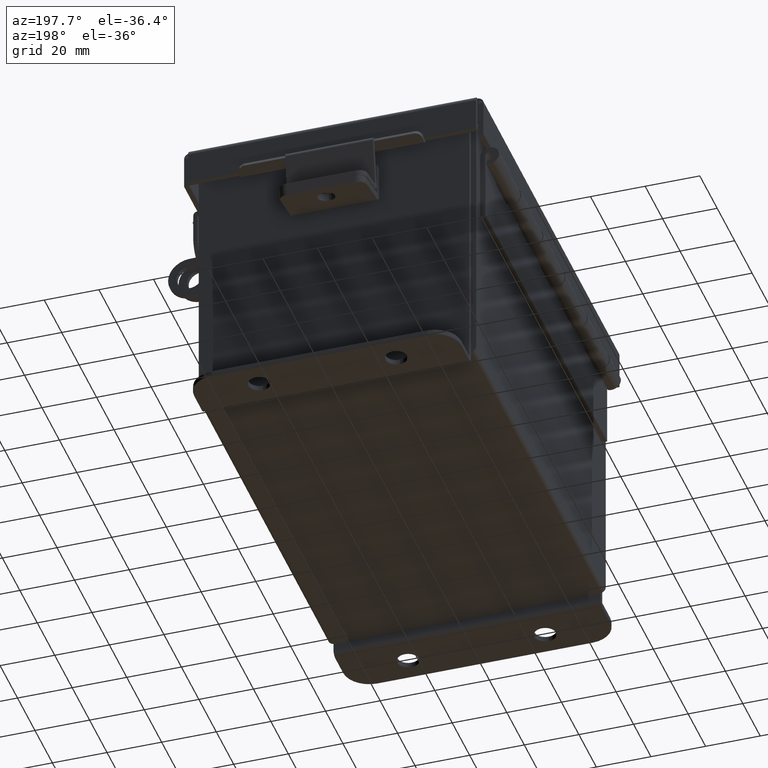
[diagram: clean part render]
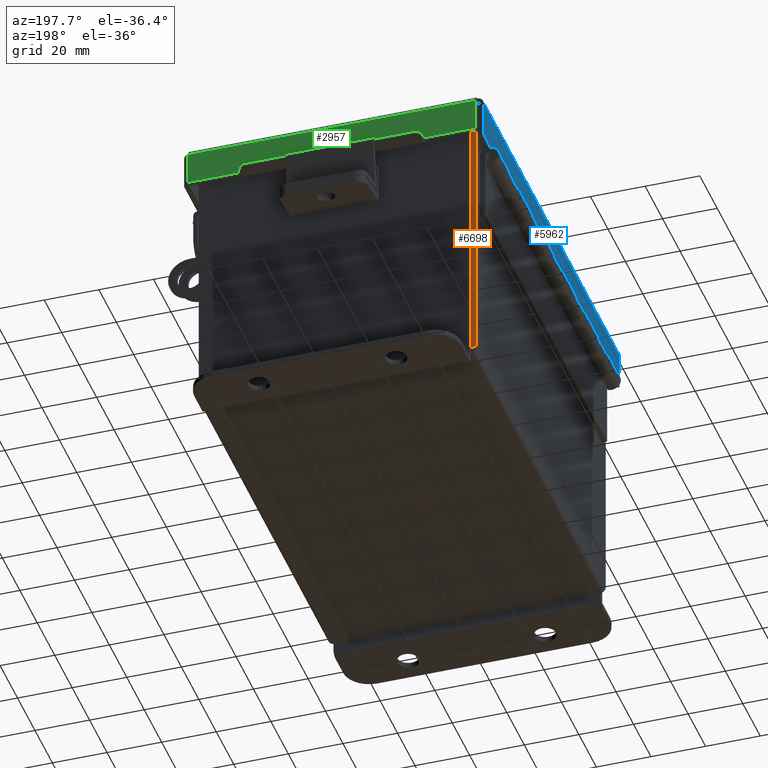
[diagram: same view with three faces highlighted in distinct colors, each labeled with its STEP entity id]
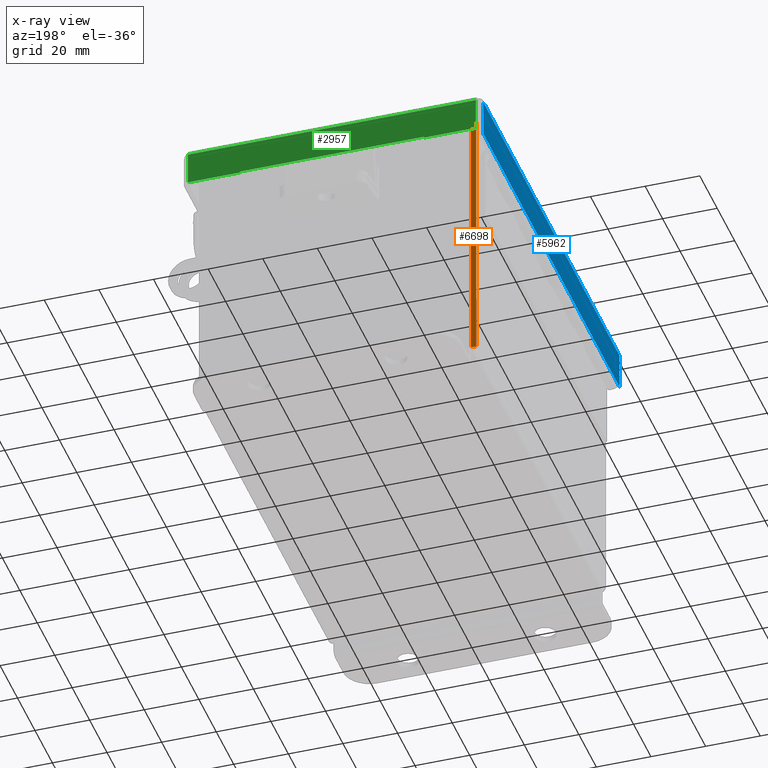
[diagram: x-ray of the same camera — body ghosted, the three highlighted faces saturated]
A machine part, auxiliary view with three faces highlighted in distinct colors.
The next image is the same camera in x-ray (body ghosted, the three faces saturated) — at least one of them is partly hidden behind the body in this view.
Their STEP definitions:

[orange] entity #6698 — the highlighted planar face has unit normal (0, -1, 0).
#428 = ORIENTED_EDGE ( 'NONE', *, *, #6834, .F. ) ;
#581 = PLANE ( 'NONE',  #9693 ) ;
#1489 = VERTEX_POINT ( 'NONE', #9388 ) ;
#1975 = DIRECTION ( 'NONE',  ( 3.476355676765930200E-015, 0.0000000000000000000, -1.000000000000000000 ) ) ;
#2546 = FACE_OUTER_BOUND ( 'NONE', #2794, .T. ) ;
#2549 = VECTOR ( 'NONE', #12480, 39.37007874015748100 ) ;
#2794 = EDGE_LOOP ( 'NONE', ( #11082, #13341, #6570, #428 ) ) ;
#2807 = CARTESIAN_POINT ( 'NONE',  ( -2.000000000000000400, 2.925299999999999600, -2.646477743862255200E-016 ) ) ;
#2919 = VERTEX_POINT ( 'NONE', #9734 ) ;
#3502 = CARTESIAN_POINT ( 'NONE',  ( -1.925300000000000700, 2.925299999999999600, 0.0000000000000000000 ) ) ;
#3817 = EDGE_CURVE ( 'NONE', #10933, #12773, #5489, .T. ) ;
#4097 = VECTOR ( 'NONE', #1975, 39.37007874015748100 ) ;
#4651 = VECTOR ( 'NONE', #12942, 39.37007874015748100 ) ;
#4829 = CARTESIAN_POINT ( 'NONE',  ( -2.000000000000000400, 2.925299999999999600, 0.01299999999999956900 ) ) ;
#5002 = LINE ( 'NONE', #11860, #4651 ) ;
#5018 = DIRECTION ( 'NONE',  ( 0.0000000000000000000, -1.000000000000000000, 0.0000000000000000000 ) ) ;
#5489 = LINE ( 'NONE', #3502, #8418 ) ;
#5690 = DIRECTION ( 'NONE',  ( 3.476355676765930200E-015, -0.0000000000000000000, -1.000000000000000000 ) ) ;
#6509 = CARTESIAN_POINT ( 'NONE',  ( -1.925300000000014700, 2.925299999999999600, 3.837599999999999700 ) ) ;
#6570 = ORIENTED_EDGE ( 'NONE', *, *, #12783, .T. ) ;
#6698 = ADVANCED_FACE ( 'NONE', ( #2546 ), #581, .F. ) ;
#6834 = EDGE_CURVE ( 'NONE', #2919, #1489, #12138, .T. ) ;
#8418 = VECTOR ( 'NONE', #5690, 39.37007874015748100 ) ;
#8549 = CARTESIAN_POINT ( 'NONE',  ( -2.000000000000000400, 2.925299999999999600, -7.213786108269695100E-015 ) ) ;
#9036 = EDGE_CURVE ( 'NONE', #10933, #2919, #5002, .T. ) ;
#9388 = CARTESIAN_POINT ( 'NONE',  ( -2.000000000000000400, 2.925299999999999600, 0.01299999999999946700 ) ) ;
#9693 = AXIS2_PLACEMENT_3D ( 'NONE', #2807, #5018, #12655 ) ;
#9734 = CARTESIAN_POINT ( 'NONE',  ( -2.000000000000013800, 2.925299999999999600, 3.837599999999999700 ) ) ;
#10234 = CARTESIAN_POINT ( 'NONE',  ( -1.925300000000000700, 2.925299999999999600, 0.01299999999999974100 ) ) ;
#10933 = VERTEX_POINT ( 'NONE', #6509 ) ;
#11082 = ORIENTED_EDGE ( 'NONE', *, *, #9036, .F. ) ;
#11289 = LINE ( 'NONE', #4829, #2549 ) ;
#11860 = CARTESIAN_POINT ( 'NONE',  ( -1.925300000000014700, 2.925299999999999600, 3.837599999999999700 ) ) ;
#12138 = LINE ( 'NONE', #8549, #4097 ) ;
#12480 = DIRECTION ( 'NONE',  ( -1.000000000000000000, -0.0000000000000000000, -3.491481338843133000E-015 ) ) ;
#12655 = DIRECTION ( 'NONE',  ( 0.0000000000000000000, -0.0000000000000000000, -1.000000000000000000 ) ) ;
#12773 = VERTEX_POINT ( 'NONE', #10234 ) ;
#12783 = EDGE_CURVE ( 'NONE', #12773, #1489, #11289, .T. ) ;
#12942 = DIRECTION ( 'NONE',  ( -1.000000000000000000, 0.0000000000000000000, 0.0000000000000000000 ) ) ;
#13341 = ORIENTED_EDGE ( 'NONE', *, *, #3817, .T. ) ;

[blue] entity #5962 — the highlighted planar face has unit normal (1, -0, 0).
#470 = CARTESIAN_POINT ( 'NONE',  ( 2.156249999999999600, 3.074478932188135200, -7.649174382259936200E-015 ) ) ;
#640 = ORIENTED_EDGE ( 'NONE', *, *, #4717, .T. ) ;
#722 = DIRECTION ( 'NONE',  ( -2.258600338820354400E-033, -1.000000000000000000, 0.0000000000000000000 ) ) ;
#824 = DIRECTION ( 'NONE',  ( 1.524975807186273400E-031, -1.000000000000000000, 4.327679989963191500E-017 ) ) ;
#1034 = FACE_OUTER_BOUND ( 'NONE', #1577, .T. ) ;
#1221 = ORIENTED_EDGE ( 'NONE', *, *, #9010, .F. ) ;
#1427 = ORIENTED_EDGE ( 'NONE', *, *, #5407, .F. ) ;
#1577 = EDGE_LOOP ( 'NONE', ( #1221, #640, #3016, #1427 ) ) ;
#1655 = CARTESIAN_POINT ( 'NONE',  ( 2.156249999999999600, -6.402768735150616900E-018, -7.649174382259936200E-015 ) ) ;
#1958 = AXIS2_PLACEMENT_3D ( 'NONE', #1655, #4981, #12620 ) ;
#2357 = VERTEX_POINT ( 'NONE', #9839 ) ;
#3016 = ORIENTED_EDGE ( 'NONE', *, *, #13705, .T. ) ;
#3854 = DIRECTION ( 'NONE',  ( 3.475001990850414000E-015, -0.0000000000000000000, 1.000000000000000000 ) ) ;
#3908 = LINE ( 'NONE', #13847, #12292 ) ;
#4076 = CARTESIAN_POINT ( 'NONE',  ( 2.156250000000001800, -3.074478932188135600, 0.5503000000000042300 ) ) ;
#4322 = LINE ( 'NONE', #11493, #6890 ) ;
#4717 = EDGE_CURVE ( 'NONE', #5891, #2357, #9667, .T. ) ;
#4981 = DIRECTION ( 'NONE',  ( -1.000000000000000000, -1.053936495316233400E-032, 3.475001990850414000E-015 ) ) ;
#5407 = EDGE_CURVE ( 'NONE', #5776, #7528, #4322, .T. ) ;
#5776 = VERTEX_POINT ( 'NONE', #12301 ) ;
#5891 = VERTEX_POINT ( 'NONE', #7030 ) ;
#5962 = ADVANCED_FACE ( 'NONE', ( #1034 ), #8231, .F. ) ;
#6890 = VECTOR ( 'NONE', #3854, 39.37007874015748100 ) ;
#7030 = CARTESIAN_POINT ( 'NONE',  ( 2.156249999999999600, 3.074478932188135200, 0.01299999999999956100 ) ) ;
#7055 = DIRECTION ( 'NONE',  ( 3.475001990850414000E-015, 0.0000000000000000000, 1.000000000000000000 ) ) ;
#7528 = VERTEX_POINT ( 'NONE', #4076 ) ;
#8231 = PLANE ( 'NONE',  #1958 ) ;
#9010 = EDGE_CURVE ( 'NONE', #5891, #5776, #13732, .T. ) ;
#9334 = VECTOR ( 'NONE', #7055, 39.37007874015748100 ) ;
#9667 = LINE ( 'NONE', #470, #9334 ) ;
#9839 = CARTESIAN_POINT ( 'NONE',  ( 2.156250000000001800, 3.074478932188135200, 0.5502999999999999000 ) ) ;
#10706 = CARTESIAN_POINT ( 'NONE',  ( 2.156249999999999600, -3.156249999999998700, 0.01300000000000393200 ) ) ;
#11493 = CARTESIAN_POINT ( 'NONE',  ( 2.156249999999999600, -3.074478932188135600, 3.824587191129968100E-015 ) ) ;
#11850 = VECTOR ( 'NONE', #824, 39.37007874015748100 ) ;
#12292 = VECTOR ( 'NONE', #722, 39.37007874015748100 ) ;
#12301 = CARTESIAN_POINT ( 'NONE',  ( 2.156249999999999600, -3.074478932188135200, 0.01300000000000393200 ) ) ;
#12620 = DIRECTION ( 'NONE',  ( 3.475001990850414000E-015, 0.0000000000000000000, 1.000000000000000000 ) ) ;
#13705 = EDGE_CURVE ( 'NONE', #2357, #7528, #3908, .T. ) ;
#13732 = LINE ( 'NONE', #10706, #11850 ) ;
#13847 = CARTESIAN_POINT ( 'NONE',  ( 2.156250000000001800, -6.402768735150616900E-018, 0.5502999999999999000 ) ) ;

[green] entity #2957 — the highlighted planar face has unit normal (-0, -1, -0).
#2 = EDGE_CURVE ( 'NONE', #8118, #5777, #2660, .T. ) ;
#24 = ORIENTED_EDGE ( 'NONE', *, *, #2, .T. ) ;
#200 = CARTESIAN_POINT ( 'NONE',  ( 1.324478932188134300, 3.156250000000002200, 0.4717115427318843700 ) ) ;
#295 = EDGE_CURVE ( 'NONE', #4871, #3247, #2138, .T. ) ;
#361 = EDGE_CURVE ( 'NONE', #6023, #8118, #10200, .T. ) ;
#512 = ORIENTED_EDGE ( 'NONE', *, *, #9758, .F. ) ;
#620 = ORIENTED_EDGE ( 'NONE', *, *, #361, .T. ) ;
#629 = ORIENTED_EDGE ( 'NONE', *, *, #5585, .F. ) ;
#720 = VERTEX_POINT ( 'NONE', #3188 ) ;
#950 = DIRECTION ( 'NONE',  ( -1.051488783018148900E-013, -3.504962610060501300E-014, 1.000000000000000000 ) ) ;
#1062 = DIRECTION ( 'NONE',  ( -5.168178842462246600E-032, -1.000000000000000000, 3.363654414526077700E-015 ) ) ;
#1795 = VECTOR ( 'NONE', #11384, 39.37007874015748100 ) ;
#2062 = LINE ( 'NONE', #13779, #7886 ) ;
#2138 = LINE ( 'NONE', #5874, #10532 ) ;
#2244 = LINE ( 'NONE', #11501, #8073 ) ;
#2393 = LINE ( 'NONE', #200, #10789 ) ;
#2487 = CARTESIAN_POINT ( 'NONE',  ( -1.324478932188135600, 3.156250000000001800, 0.4872999999999994600 ) ) ;
#2564 = DIRECTION ( 'NONE',  ( 1.000000000000000000, 1.986097168924617900E-034, 1.583679996327188000E-017 ) ) ;
#2660 = LINE ( 'NONE', #8708, #13975 ) ;
#2957 = ADVANCED_FACE ( 'NONE', ( #11179 ), #5409, .F. ) ;
#3188 = CARTESIAN_POINT ( 'NONE',  ( 2.074478932188134700, 3.156250000000000000, 0.01300000000000010700 ) ) ;
#3247 = VERTEX_POINT ( 'NONE', #9217 ) ;
#4079 = EDGE_CURVE ( 'NONE', #4871, #12487, #2062, .T. ) ;
#4543 = EDGE_CURVE ( 'NONE', #12487, #12310, #2393, .T. ) ;
#4826 = VECTOR ( 'NONE', #12955, 39.37007874015748100 ) ;
#4871 = VERTEX_POINT ( 'NONE', #10545 ) ;
#4933 = DIRECTION ( 'NONE',  ( -0.0000000000000000000, 3.363654414526078100E-015, 1.000000000000000000 ) ) ;
#5409 = PLANE ( 'NONE',  #10837 ) ;
#5585 = EDGE_CURVE ( 'NONE', #6023, #720, #10655, .T. ) ;
#5744 = ORIENTED_EDGE ( 'NONE', *, *, #295, .T. ) ;
#5777 = VERTEX_POINT ( 'NONE', #2487 ) ;
#5874 = CARTESIAN_POINT ( 'NONE',  ( 1.173840934777613000E-017, 3.156250000000001800, 0.4873000000000000100 ) ) ;
#6023 = VERTEX_POINT ( 'NONE', #7217 ) ;
#6116 = DIRECTION ( 'NONE',  ( 0.0000000000000000000, 3.504962610060501300E-014, -1.000000000000000000 ) ) ;
#6659 = ORIENTED_EDGE ( 'NONE', *, *, #4543, .F. ) ;
#6826 = ORIENTED_EDGE ( 'NONE', *, *, #10058, .F. ) ;
#7217 = CARTESIAN_POINT ( 'NONE',  ( -2.074478932188136100, 3.156250000000000000, 0.01300000000000393200 ) ) ;
#7564 = CARTESIAN_POINT ( 'NONE',  ( 1.324478932188134900, 3.156250000000001800, 0.4717115427318843700 ) ) ;
#7886 = VECTOR ( 'NONE', #6116, 39.37007874015748100 ) ;
#7929 = DIRECTION ( 'NONE',  ( -1.000000000000000000, -2.258600338820529900E-033, -0.0000000000000000000 ) ) ;
#8037 = ORIENTED_EDGE ( 'NONE', *, *, #4079, .F. ) ;
#8073 = VECTOR ( 'NONE', #4933, 39.37007874015748100 ) ;
#8118 = VERTEX_POINT ( 'NONE', #10472 ) ;
#8648 = CARTESIAN_POINT ( 'NONE',  ( -1.324478932188134300, 3.156250000000002200, 0.4717115427318799800 ) ) ;
#8708 = CARTESIAN_POINT ( 'NONE',  ( 1.173840934777613000E-017, 3.156250000000001800, 0.4873000000000000100 ) ) ;
#8741 = DIRECTION ( 'NONE',  ( 0.0000000000000000000, -3.363654414526077700E-015, -1.000000000000000000 ) ) ;
#8892 = EDGE_LOOP ( 'NONE', ( #8037, #5744, #6826, #629, #620, #24, #512, #6659 ) ) ;
#9217 = CARTESIAN_POINT ( 'NONE',  ( 2.074478932188134700, 3.156250000000001800, 0.4873000000000000100 ) ) ;
#9508 = CARTESIAN_POINT ( 'NONE',  ( -1.324478932188134300, 3.156250000000001800, 0.4717115427318799800 ) ) ;
#9758 = EDGE_CURVE ( 'NONE', #12310, #5777, #11162, .T. ) ;
#9787 = CARTESIAN_POINT ( 'NONE',  ( 1.920830620545185200E-017, 3.156250000000000000, -1.092739197465705300E-014 ) ) ;
#10058 = EDGE_CURVE ( 'NONE', #720, #3247, #2244, .T. ) ;
#10200 = LINE ( 'NONE', #11421, #1795 ) ;
#10472 = CARTESIAN_POINT ( 'NONE',  ( -2.074478932188136100, 3.156250000000001800, 0.4873000000000000100 ) ) ;
#10532 = VECTOR ( 'NONE', #2564, 39.37007874015748100 ) ;
#10545 = CARTESIAN_POINT ( 'NONE',  ( 1.324478932188134900, 3.156250000000001800, 0.4873000000000038400 ) ) ;
#10655 = LINE ( 'NONE', #14089, #4826 ) ;
#10789 = VECTOR ( 'NONE', #7929, 39.37007874015748100 ) ;
#10837 = AXIS2_PLACEMENT_3D ( 'NONE', #9787, #1062, #8741 ) ;
#10894 = DIRECTION ( 'NONE',  ( 1.000000000000000000, 1.986097168924617900E-034, 1.583679996327188000E-017 ) ) ;
#11162 = LINE ( 'NONE', #8648, #11511 ) ;
#11179 = FACE_OUTER_BOUND ( 'NONE', #8892, .T. ) ;
#11384 = DIRECTION ( 'NONE',  ( 0.0000000000000000000, 3.363654414526078100E-015, 1.000000000000000000 ) ) ;
#11421 = CARTESIAN_POINT ( 'NONE',  ( -2.074478932188136100, 3.156250000000000000, -6.556435184794231700E-015 ) ) ;
#11501 = CARTESIAN_POINT ( 'NONE',  ( 2.074478932188134700, 3.156250000000000000, 0.0000000000000000000 ) ) ;
#11511 = VECTOR ( 'NONE', #950, 39.37007874015748100 ) ;
#12310 = VERTEX_POINT ( 'NONE', #9508 ) ;
#12487 = VERTEX_POINT ( 'NONE', #7564 ) ;
#12955 = DIRECTION ( 'NONE',  ( 1.000000000000000000, -4.704520623749288300E-032, -0.0000000000000000000 ) ) ;
#13779 = CARTESIAN_POINT ( 'NONE',  ( 1.324478932188134900, 3.156250000000001800, 0.4873000000000044000 ) ) ;
#13975 = VECTOR ( 'NONE', #10894, 39.37007874015748100 ) ;
#14089 = CARTESIAN_POINT ( 'NONE',  ( 2.156249999999999100, 3.156250000000000000, 0.01300000000000010700 ) ) ;